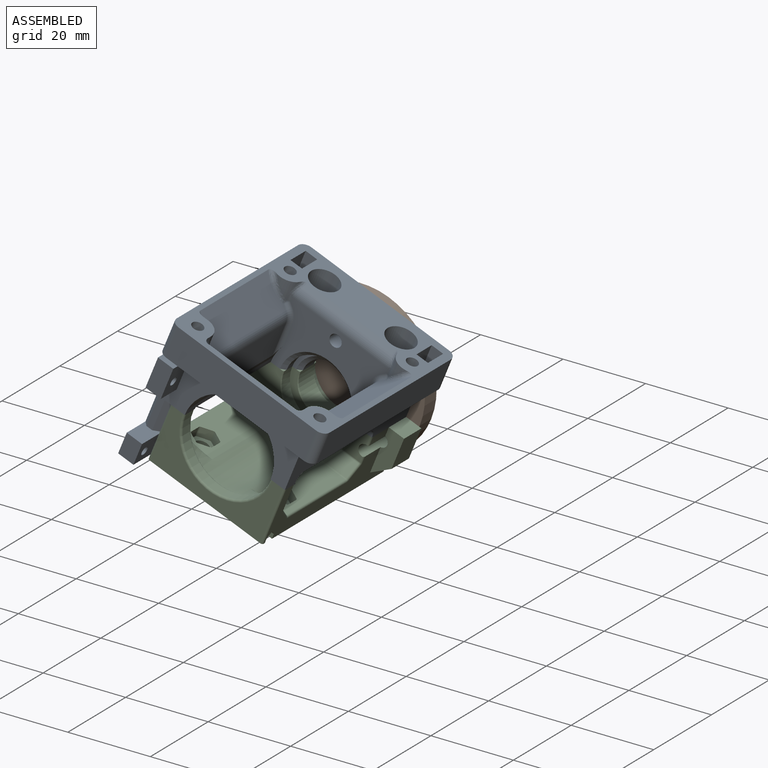
[diagram: assembled view]
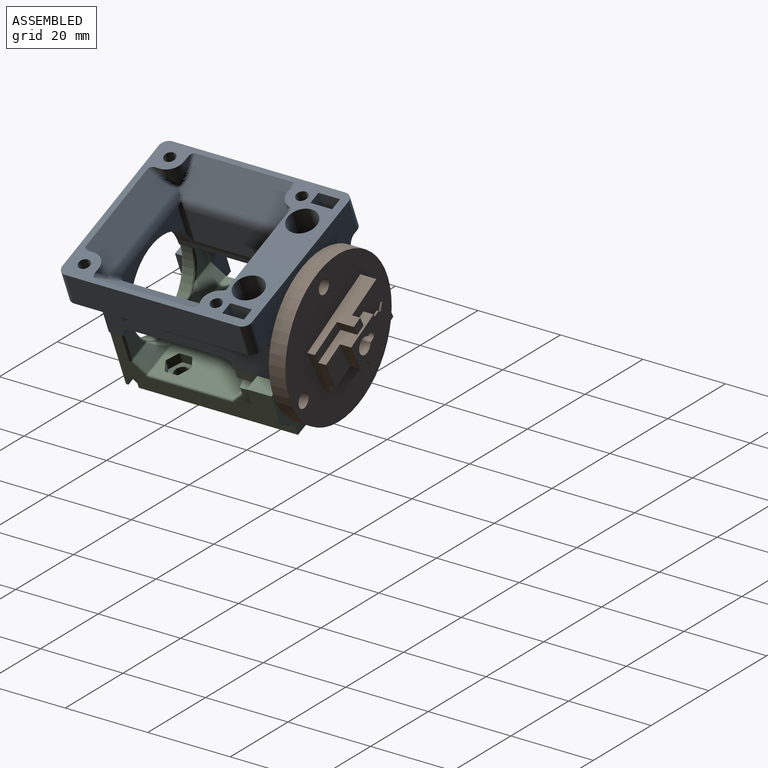
[diagram: assembled view, second angle]
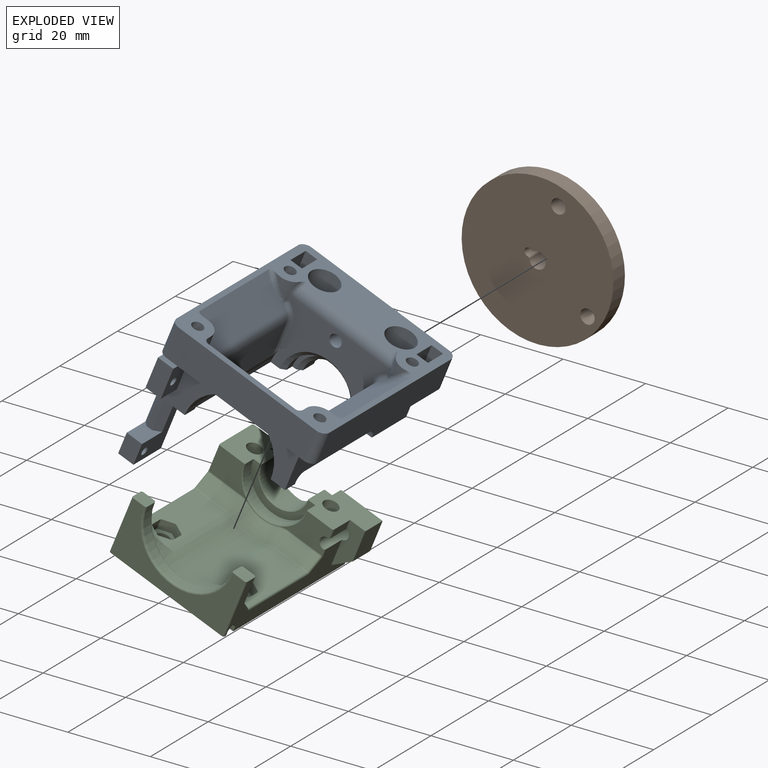
[diagram: exploded view]
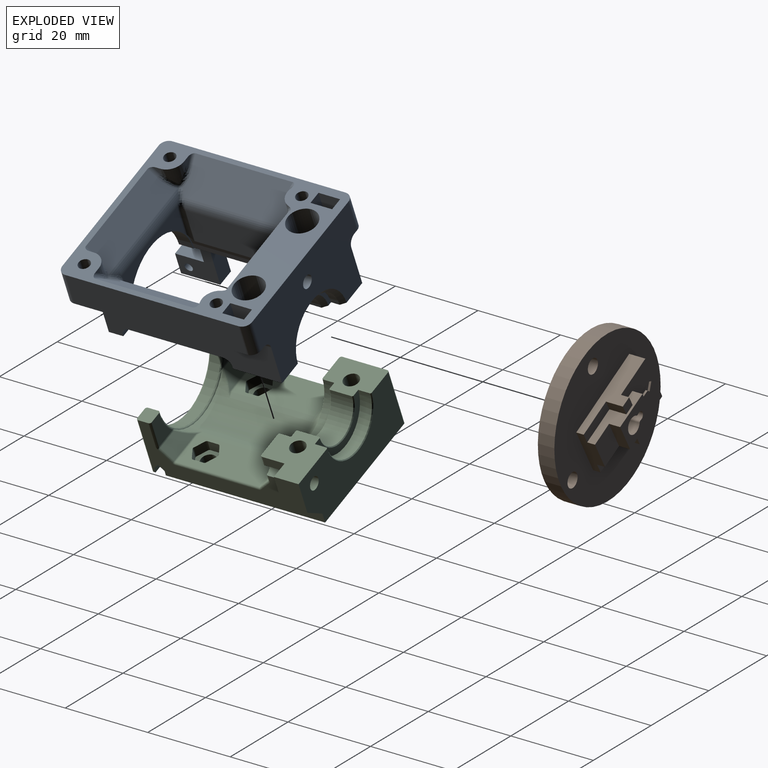
[diagram: exploded view, second angle]
ASSEMBLY  parts=3 mates=2
PART A: 135 faces, bbox 40.8x48.3x35.2 mm
  f0: plane 45.74x3.02mm, normal (0,0,-1), area 115.7mm2, adj f16,f17,f18,f19,f95,f96,f97,f98
  f1: cylinder r=2mm len=31.97mm, axis (1,0,0), area 88.2mm2, adj f4,f12,f88,f89,f90,f125
  f2: plane 13.5x9.5mm, normal (1,0,0), area 69.1mm2, adj f3,f5,f122,f123,f128,f130,f131
  f3: plane 5.5x4mm, normal (0,-1,0), area 22mm2, adj f2,f123,f124,f128
  f4: plane 18x12.83mm, normal (0,-1,0), area 78.8mm2, adj f1,f5,f88,f125,f127,f128,f131,f132
  f5: plane 42x10.39mm, normal (0,0,-1), area 188.3mm2, adj f2,f4,f8,f19,f21,f24,f29,f88
  f6: plane 11.9x8.89mm, normal (0,0,-1), area 81.4mm2, adj f19,f20,f21,f101,f102,f103,f104,f105
  f7: plane 3.74x3.5mm, normal (0,0,-1), area 13.1mm2, adj f20,f29,f88,f89
  f8: cylinder r=1.8mm len=7mm, axis (0,0,1), area 79.2mm2, adj f5,f9
  f9: cone r=2.65mm half-angle=45deg, axis (0,0,1), area 40mm2, adj f8,f10
  f10: cylinder r=3.5mm len=11.3mm, axis (0,0,1), area 248.5mm2, adj f9,f11
  f11: plane 46.76x40.76mm, normal (0,0,1), area 517.4mm2, adj f10,f13,f14,f15,f16,f17,f18,f19
  f12: plane 46x34.99mm, normal (0,0,-1), area 195.6mm2, adj f1,f13,f14,f15,f19,f90,f92,f93
  f13: plane 42x8mm, normal (1,0,0), area 336mm2, adj f11,f12,f14,f110
  f14: cylinder r=2mm len=8mm, axis (0,0,-1), area 25.1mm2, adj f11,f12,f13,f15
  f15: plane 36x8mm, normal (0,-1,0), area 288mm2, adj f11,f12,f14,f16,f133
  f16: cylinder r=2mm len=8mm, axis (0,0,-1), area 25.1mm2, adj f0,f11,f15,f17,f133
  f17: plane 42x8mm, normal (-1,0,0), area 336mm2, adj f0,f11,f16,f18
  f18: cylinder r=2mm len=8mm, axis (0,0,-1), area 25.1mm2, adj f0,f11,f17,f19
  f19: plane 36x20mm, normal (0,1,0), area 512.2mm2, adj f0,f5,f6,f11,f12,f18,f20,f90
  f20: plane 42x10mm, normal (1,0,0), area 355.2mm2, adj f6,f7,f19,f21,f22,f29,f30,f33
  f21: plane 27.54x16.55mm, normal (0,-1,0), area 225mm2, adj f5,f6,f20,f22,f24,f25,f36,f37
  f22: cylinder r=2mm len=3.55mm, axis (-1,0,0), area 8mm2, adj f20,f21,f23,f25,f33,f34
  f23: bspline ~4.09x2.96mm, area 3.9mm2, adj f22,f25,f34,f36
  f24: cylinder r=11.5mm len=26.6mm, axis (0,1,0), area 66.9mm2, adj f5,f21,f27,f28,f29,f85
  f25: cylinder r=11.5mm len=4.71mm, axis (0,1,0), area 1mm2, adj f21,f22,f23,f36
  f26: cylinder r=11.5mm len=4.71mm, axis (0,1,0), area 1mm2, adj f29,f30,f79,f80
  f27: plane 24.6x8.67mm, normal (1,0,0), area 213.2mm2, adj f24,f28,f69,f85
  f28: cylinder r=1mm len=8.67mm, axis (0,0,-1), area 11.4mm2, adj f24,f27,f29,f70
  f29: plane 26.49x12.55mm, normal (0,1,0), area 69.3mm2, adj f5,f7,f20,f24,f26,f28,f30,f70
  f30: cylinder r=2mm len=3.55mm, axis (-1,0,0), area 8mm2, adj f20,f26,f29,f31,f33,f80
  f31: torus R=4mm, axis (-1,0,0), area 2.2mm2, adj f30,f32,f35,f80
  f32: cylinder r=2mm len=22.6mm, axis (0,1,0), area 71mm2, adj f31,f33,f34,f35
  f33: plane 22.6x1.74mm, normal (0,0,-1), area 39.2mm2, adj f20,f22,f30,f32
  f34: torus R=4mm, axis (-1,0,0), area 2.2mm2, adj f22,f23,f32,f35
  f35: plane 24.6x6.68mm, normal (-1,0,0), area 161.2mm2, adj f31,f32,f34,f36,f77,f79
  f36: cylinder r=1mm len=7.78mm, axis (0,0,-1), area 11mm2, adj f21,f23,f25,f35,f37
  f37: torus R=4.5mm, axis (0,1,0), area 4.8mm2, adj f21,f36,f38,f77
  f38: cylinder r=1mm len=1.7mm, axis (-0.71,0,-0.71), area 2.2mm2, adj f21,f37,f39,f44
  f39: sphere r=1mm, area 0.5mm2, adj f38,f40,f43
  f40: cylinder r=1mm len=1.33mm, axis (0,0,-1), area 1.2mm2, adj f21,f39,f41,f42
  f41: bspline ~3.35x2.04mm, area 3.4mm2, adj f40,f42,f62,f63
  f42: cylinder r=3.5mm len=4.78mm, axis (0,0,1), area 11.4mm2, adj f11,f40,f41,f43,f62
  f43: bspline ~6.78x6.37mm, area 10mm2, adj f11,f39,f42,f44
  f44: plane 26x6.67mm, normal (-0.71,0,0.71), area 218.7mm2, adj f11,f38,f43,f45,f48,f77,f81
  f45: bspline ~4.08x3.54mm, area 5.6mm2, adj f44,f46,f48,f82
  f46: cylinder r=3.5mm len=4.39mm, axis (0,0,1), area 15.6mm2, adj f11,f45,f47,f49,f83,f84
  f47: plane 1.34x1.34mm, normal (0,1,0), area 0.9mm2, adj f11,f46,f48
  f48: cylinder r=1mm len=2.75mm, axis (-0.71,0,-0.71), area 3.8mm2, adj f11,f44,f45,f47
  f49: plane 1.09x1.09mm, normal (-1,0,0), area 0.6mm2, adj f11,f46,f50
  f50: cylinder r=1mm len=2.5mm, axis (0,0.71,-0.71), area 3.2mm2, adj f11,f49,f51,f84
  f51: plane 25.9x5.24mm, normal (0,0.71,0.71), area 165.5mm2, adj f11,f50,f52,f72,f84,f87
  f52: bspline ~4.2x3.68mm, area 5.8mm2, adj f51,f53,f75,f87
  f53: cylinder r=3.5mm len=4.39mm, axis (0,0,1), area 15.7mm2, adj f11,f52,f54,f57,f75,f86
  f54: bspline ~4.08x3.54mm, area 5.6mm2, adj f53,f55,f56,f74
  f55: plane 26.57x7.25mm, normal (0.71,0,0.71), area 218.7mm2, adj f11,f54,f56,f58,f67,f69,f73
  f56: cylinder r=1mm len=2.75mm, axis (0.71,0,-0.71), area 3.8mm2, adj f11,f54,f55,f57
  f57: plane 1.34x1.34mm, normal (0,1,0), area 0.9mm2, adj f11,f53,f56
  f58: bspline ~6.78x6.37mm, area 10.2mm2, adj f11,f55,f59,f66
  f59: cylinder r=3.5mm len=4.78mm, axis (0,0,1), area 12mm2, adj f11,f58,f60,f64,f65
  f60: bspline ~1.87x1.55mm, area 1.3mm2, adj f11,f59,f61,f64
  f61: plane 23.73x1.13mm, normal (0,-0.71,0.71), area 32.1mm2, adj f11,f60,f62,f63
  f62: bspline ~1.87x1.55mm, area 1.5mm2, adj f11,f41,f42,f61
  f63: cylinder r=3.5mm len=25.12mm, axis (-1,0,0), area 66.9mm2, adj f21,f41,f61,f64
  f64: bspline ~3.38x2.04mm, area 3.4mm2, adj f59,f60,f63,f65
  f65: cylinder r=1mm len=1.33mm, axis (0,0,1), area 1.2mm2, adj f21,f59,f64,f66
  f66: sphere r=1mm, area 0.4mm2, adj f58,f65,f67
  f67: cylinder r=1mm len=1.7mm, axis (0.71,0,-0.71), area 2.2mm2, adj f21,f55,f66,f68
  f68: torus R=4.5mm, axis (0,-1,0), area 4.8mm2, adj f21,f67,f69,f85
  f69: cylinder r=3.5mm len=24.93mm, axis (0,-1,0), area 67.9mm2, adj f27,f55,f68,f70,f71
  f70: torus R=4.5mm, axis (0,-1,0), area 2.1mm2, adj f28,f29,f69,f71
  f71: bspline ~2.01x1.94mm, area 2.3mm2, adj f69,f70,f72,f73
  f72: cylinder r=3.5mm len=25.89mm, axis (1,0,0), area 64.1mm2, adj f29,f51,f71,f73,f75,f76,f81,f83
  f73: bspline ~2.33x1.79mm, area 2.4mm2, adj f55,f71,f72,f74
  f74: sphere r=1mm, area 0.5mm2, adj f54,f73,f75
  f75: bspline ~1.02x0.99mm, area 0.3mm2, adj f52,f53,f72,f74
  f76: bspline ~2.01x1.94mm, area 2.3mm2, adj f72,f77,f78,f81
  f77: cylinder r=3.5mm len=24.93mm, axis (0,1,0), area 67.9mm2, adj f35,f37,f44,f76,f78
  f78: torus R=4.5mm, axis (0,1,0), area 2.1mm2, adj f29,f76,f77,f79
  f79: cylinder r=1mm len=7.78mm, axis (0,0,-1), area 11mm2, adj f26,f29,f35,f78,f80
  f80: bspline ~3.6x3.4mm, area 3.9mm2, adj f26,f30,f31,f79
  f81: bspline ~2.33x1.79mm, area 2.4mm2, adj f44,f72,f76,f82
  f82: sphere r=1mm, area 0.5mm2, adj f45,f81,f83
  f83: bspline ~1.02x0.99mm, area 0.3mm2, adj f46,f72,f82,f84
  f84: bspline ~4.21x3.69mm, area 5.8mm2, adj f46,f50,f51,f83
  f85: cylinder r=1mm len=8.67mm, axis (0,0,-1), area 11.4mm2, adj f21,f24,f27,f68
  f86: plane 1.09x1.09mm, normal (1,0,0), area 0.6mm2, adj f11,f53,f87
  f87: cylinder r=1mm len=2.5mm, axis (0,0.71,-0.71), area 3.2mm2, adj f11,f51,f52,f86
  f88: cylinder r=11.25mm len=22.5mm, axis (0,1,0), area 123.7mm2, adj f1,f4,f5,f7,f29,f89
  f89: plane 10x9.83mm, normal (0,-1,0), area 54.8mm2, adj f1,f7,f20,f88
  f90: cylinder r=2mm len=44mm, axis (0,1,0), area 119.9mm2, adj f1,f12,f19,f20,f91,f92,f94
  f91: plane 9.76x5.25mm, normal (1,0,0), area 51.2mm2, adj f11,f90,f92,f94
  f92: plane 9.76x3mm, normal (0,-1,0), area 24.8mm2, adj f11,f12,f90,f91,f93
  f93: plane 8x5.25mm, normal (-1,0,0), area 42mm2, adj f11,f12,f92,f94
  f94: plane 9.76x3mm, normal (0,1,0), area 24.8mm2, adj f11,f12,f90,f91,f93
  f95: cylinder r=2mm len=38mm, axis (0,-1,0), area 104.2mm2, adj f0,f19,f96,f98,f99,f100,f122
  f96: plane 9.76x3mm, normal (0,-1,0), area 24.8mm2, adj f0,f11,f95,f97,f99
  f97: plane 8x5.25mm, normal (1,0,0), area 42mm2, adj f0,f11,f96,f98
  f98: plane 9.76x3mm, normal (0,1,0), area 24.8mm2, adj f0,f11,f95,f97,f99
  f99: plane 9.76x5.25mm, normal (-1,0,0), area 51.2mm2, adj f11,f95,f96,f98
  f100: plane 38x10mm, normal (-1,0,0), area 380mm2, adj f5,f19,f95,f122
  f101: cone r=8.6mm half-angle=45deg, axis (0,-1,0), area 38.2mm2, adj f5,f6,f21,f102
  f102: cylinder r=8.1mm len=16.2mm, axis (0,1,0), area 50.9mm2, adj f5,f6,f101,f103
  f103: plane 16.2x8.1mm, normal (0,-1,0), area 23.9mm2, adj f5,f6,f102,f104
  f104: cone r=6.6mm half-angle=45deg, axis (0,-1,0), area 29.3mm2, adj f5,f6,f103,f105
  f105: cylinder r=6.1mm len=12.2mm, axis (0,1,0), area 72.8mm2, adj f5,f6,f104,f106
  f106: cone r=6.6mm half-angle=45deg, axis (0,1,0), area 29.3mm2, adj f5,f6,f105,f107
  f107: plane 16.2x8.1mm, normal (0,1,0), area 23.9mm2, adj f5,f6,f106,f108
  f108: cylinder r=8.1mm len=16.2mm, axis (0,1,0), area 53.4mm2, adj f5,f6,f107,f109
  f109: cone r=8.6mm half-angle=45deg, axis (0,1,0), area 38.2mm2, adj f5,f6,f19,f108
  f110: cylinder r=2mm len=8mm, axis (0,0,-1), area 25.1mm2, adj f11,f12,f13,f19
  f111: cylinder r=3.5mm len=11.3mm, axis (0,0,1), area 248.5mm2, adj f11,f112
  f112: cone r=2.65mm half-angle=45deg, axis (0,0,1), area 40mm2, adj f111,f113
  f113: cylinder r=1.8mm len=7mm, axis (0,0,1), area 79.2mm2, adj f6,f112
  f114: cylinder r=1.38mm len=4.63mm, axis (0,0,1), area 40mm2, adj f11,f115
  f115: cone r=0.73mm half-angle=45deg, axis (0,0,1), area 8.4mm2, adj f114
  f116: cylinder r=1.38mm len=4.63mm, axis (0,0,1), area 40mm2, adj f11,f117
  f117: cone r=0.73mm half-angle=45deg, axis (0,0,1), area 8.4mm2, adj f116
  f118: cylinder r=1.38mm len=6mm, axis (0,0,1), area 51.8mm2, adj f11,f119
  f119: plane 2.75x2.75mm, normal (0,0,1), area 5.9mm2, adj f118
  f120: plane 2.75x2.75mm, normal (0,0,1), area 5.9mm2, adj f121
  f121: cylinder r=1.38mm len=6mm, axis (0,0,1), area 51.8mm2, adj f11,f120
  f122: plane 25.5x4mm, normal (0,1,0), area 101.1mm2, adj f0,f2,f95,f100,f123,f124
  f123: plane 9.5x4mm, normal (0,0,-1), area 38mm2, adj f2,f3,f122,f124
  f124: plane 25.5x9.5mm, normal (-1,0,0), area 158mm2, adj f0,f3,f122,f123,f126,f127,f128,f129
  f125: plane 8x5.5mm, normal (1,0,0), area 40mm2, adj f1,f4,f12,f126,f127,f129,f133
  f126: plane 8x4mm, normal (0,-1,0), area 32mm2, adj f124,f125,f127,f133
  f127: plane 6.5x4mm, normal (0,0,-1), area 22.5mm2, adj f4,f124,f125,f126,f132
  f128: plane 7x4mm, normal (0,0,1), area 23.6mm2, adj f2,f3,f4,f124,f131,f132
  f129: cylinder r=1mm len=4mm, axis (-1,0,0), area 25.1mm2, adj f124,f125
  f130: cylinder r=1mm len=4mm, axis (-1,0,0), area 25.1mm2, adj f2,f124
  f131: plane 8x1.5mm, normal (0.71,-0.71,0), area 17mm2, adj f2,f4,f5,f128
  f132: plane 12x1mm, normal (-0.71,-0.71,0), area 17mm2, adj f4,f124,f127,f128
  f133: plane 4x1.76mm, normal (0,0,1), area 6.1mm2, adj f15,f16,f124,f125,f126
  f134: cylinder r=1.5mm len=11.9mm, axis (0,1,0), area 112.2mm2, adj f19,f21
PART B: 35 faces, bbox 36.8x36.8x10.4 mm
  f0: plane 10.39x9.13mm, normal (0,0,1), area 47.5mm2, adj f1,f7,f8,f9,f22,f23,f24,f28
  f1: cylinder r=2mm len=10.4mm, axis (0,0,-1), area 105.2mm2, adj f0,f2,f7,f8
  f2: plane 36.79x36.79mm, normal (0,0,-1), area 1028.6mm2, adj f1,f7,f8,f9,f10,f12,f13
  f3: plane 20.28x5.9mm, normal (0.97,-0.26,0), area 68.6mm2, adj f4,f6,f11,f21,f25,f29,f30,f34
  f4: plane 11.59x3.7mm, normal (-0.26,-0.97,0), area 35.1mm2, adj f3,f5,f11,f23,f24,f27,f30,f32
  f5: plane 20.28x5.9mm, normal (-0.97,0.26,0), area 68.6mm2, adj f4,f6,f11,f21,f26,f31,f32,f33
  f6: plane 11.59x3.92mm, normal (0.26,0.97,0), area 47.1mm2, adj f3,f5,f11,f21
  f7: cylinder r=0.5mm len=10.4mm, axis (0,0,1), area 6.5mm2, adj f0,f1,f2,f9
  f8: cylinder r=0.5mm len=10.4mm, axis (0,0,-1), area 6.5mm2, adj f0,f1,f2,f9
  f9: cylinder r=1mm len=10.4mm, axis (0,0,-1), area 38.6mm2, adj f0,f2,f7,f8
  f10: cylinder r=1.75mm len=4mm, axis (0,0,1), area 44mm2, adj f2,f11
  f11: plane 36.79x36.79mm, normal (0,0,1), area 791.8mm2, adj f3,f4,f5,f6,f10,f12,f13
  f12: cylinder r=1.75mm len=4mm, axis (0,0,1), area 44mm2, adj f2,f11
  f13: cylinder r=18.39mm len=36.79mm, axis (0,0,-1), area 462.3mm2, adj f2,f11
  f14: plane 5.57x3.23mm, normal (0,0,1), area 8.6mm2, adj f15,f16,f17,f18,f19,f20,f22
  f15: plane 3.54x0.95mm, normal (0.97,-0.26,0), area 1.8mm2, adj f14,f20,f21,f22
  f16: plane 3.54x0.95mm, normal (-0.97,0.26,0), area 1.8mm2, adj f14,f17,f21,f22
  f17: plane 0.83x0.5mm, normal (-0.22,0.98,0), area 0.4mm2, adj f14,f16,f18,f21
  f18: plane 1.84x1.06mm, normal (-0.87,-0.5,0), area 1.1mm2, adj f14,f17,f19,f21
  f19: plane 1.84x1.06mm, normal (0.5,-0.87,0), area 1.1mm2, adj f14,f18,f20,f21
  f20: plane 0.62x0.58mm, normal (0.68,0.73,0), area 0.4mm2, adj f14,f15,f19,f21
  f21: plane 14.1x12.45mm, normal (0,0,1), area 85.5mm2, adj f3,f5,f6,f15,f16,f17,f18,f19
  f22: plane 6.84x2.98mm, normal (0.26,0.97,0), area 18.3mm2, adj f0,f14,f15,f16,f21,f23,f24
  f23: plane 13.94x4.6mm, normal (0.97,-0.26,0), area 34.5mm2, adj f0,f4,f21,f22,f25,f27,f28,f29
  f24: plane 13.94x4.6mm, normal (-0.97,0.26,0), area 34.5mm2, adj f0,f4,f21,f22,f26,f27,f28,f31
  f25: plane 3.05x3.02mm, normal (0,0,1), area 6.1mm2, adj f3,f23,f29,f34
  f26: plane 3.05x3.02mm, normal (0,0,1), area 6.1mm2, adj f5,f24,f31,f33
  f27: plane 8.28x7.21mm, normal (0,0,1), area 39.4mm2, adj f4,f23,f24,f28
  f28: plane 6.84x2.7mm, normal (-0.26,-0.97,0), area 19.1mm2, adj f0,f23,f24,f27
  f29: plane 4.1x2.38mm, normal (-0.26,-0.97,0), area 10.1mm2, adj f3,f23,f25,f30
  f30: plane 9.16x4.66mm, normal (0,0,1), area 21.7mm2, adj f3,f4,f23,f29
  f31: plane 4.1x2.38mm, normal (-0.26,-0.97,0), area 10.1mm2, adj f5,f24,f26,f32
  f32: plane 9.16x4.66mm, normal (0,0,1), area 21.7mm2, adj f4,f5,f24,f31
  f33: plane 2.38x1.98mm, normal (0.26,0.97,0), area 4.9mm2, adj f5,f21,f24,f26
  f34: plane 2.38x1.98mm, normal (0.26,0.97,0), area 4.9mm2, adj f3,f21,f23,f25
PART C: 225 faces, bbox 34.1x42.1x14.6 mm
  f0: plane 41.5x14.5mm, normal (1,0,0), area 217.7mm2, adj f1,f3,f14,f15,f16,f17,f18,f51
  f1: cylinder r=0.5mm len=1.52mm, axis (0,0,-1), area 1.2mm2, adj f0,f65,f79,f223
  f2: plane 5.4x2.35mm, normal (1,0,0), area 12.7mm2, adj f6,f141,f221,f223
  f3: plane 3.74x3.5mm, normal (0,0,1), area 12.9mm2, adj f0,f7,f11,f144,f145,f146,f147,f220
  f4: plane 3.74x3.5mm, normal (0,0,1), area 12.9mm2, adj f7,f12,f50,f110,f143,f144,f145,f146
  f5: plane 11.9x8.89mm, normal (0,0,1), area 83.2mm2, adj f50,f53,f54,f55,f56,f57,f58,f59
  f6: plane 12.89x11.9mm, normal (0,0,1), area 107.2mm2, adj f2,f54,f55,f56,f57,f58,f59,f60
  f7: torus R=11.75mm, axis (0,-1,0), area 22.6mm2, adj f3,f4,f8,f9,f10,f11,f12,f102
  f8: cylinder r=11.5mm len=23.46mm, axis (0,-1,0), area 262mm2, adj f7,f9,f87,f88,f91,f92,f94,f96
  f9: bspline ~3.49x3.25mm, area 2.5mm2, adj f7,f8,f10,f85,f87
  f10: bspline ~0.95x0.62mm, area 0.1mm2, adj f7,f9,f11,f13
  f11: plane 6.97x5.03mm, normal (0,1,0), area 23.3mm2, adj f3,f7,f10,f13,f220
  f12: plane 6.97x5.03mm, normal (0,1,0), area 23.3mm2, adj f4,f7,f103,f104,f110
  f13: cylinder r=0.5mm len=5.12mm, axis (1,0,0), area 1.9mm2, adj f10,f11,f14,f85
  f14: torus R=1mm, axis (1,0,0), area 0.4mm2, adj f0,f13,f84,f220
  f15: plane 29.97x1.25mm, normal (0,-0.71,-0.71), area 53mm2, adj f0,f16,f50,f52
  f16: plane 29.97x1.25mm, normal (0,-1,0), area 37.5mm2, adj f0,f15,f17,f50
  f17: plane 38.6x29.97mm, normal (0,0,-1), area 1084mm2, adj f0,f16,f19,f22,f50,f53,f54,f182
  f18: plane 29.97x0.9mm, normal (0,0,-1), area 26.9mm2, adj f0,f50,f51,f143,f144,f147
  f19: cylinder r=1.8mm len=3.6mm, axis (0,0,1), area 22.6mm2, adj f17,f20
  f20: plane 6.2x5.5mm, normal (0,0,1), area 15.9mm2, adj f19,f23,f24,f25,f26,f27,f28,f29
  f21: plane 6.2x5.5mm, normal (0,0,1), area 15.9mm2, adj f22,f37,f38,f39,f40,f41,f42,f43
  f22: cylinder r=1.8mm len=3.6mm, axis (0,0,1), area 22.6mm2, adj f17,f21
  f23: cylinder r=0.5mm len=2.5mm, axis (0,0,-1), area 1.3mm2, adj f20,f24,f34,f35
  f24: plane 2.5x2.25mm, normal (-0.5,-0.87,0), area 6.5mm2, adj f20,f23,f25,f35
  f25: cylinder r=0.5mm len=2.5mm, axis (0,0,-1), area 1.3mm2, adj f20,f24,f26,f35
  f26: plane 2.5x2.25mm, normal (0.5,-0.87,0), area 6.5mm2, adj f20,f25,f27,f35
  f27: cylinder r=0.5mm len=2.5mm, axis (0,0,-1), area 1.3mm2, adj f20,f26,f28,f35
  f28: plane 2.6x2.5mm, normal (1,0,0), area 6.5mm2, adj f20,f27,f29,f35
  f29: cylinder r=0.5mm len=2.5mm, axis (0,0,-1), area 1.3mm2, adj f20,f28,f30,f35
  f30: plane 2.5x2.25mm, normal (0.5,0.87,0), area 6.5mm2, adj f20,f29,f31,f35
  f31: cylinder r=0.5mm len=2.5mm, axis (0,0,-1), area 1.3mm2, adj f20,f30,f32,f35
  f32: plane 2.5x2.25mm, normal (-0.5,0.87,0), area 6.5mm2, adj f20,f31,f33,f35
  f33: cylinder r=0.5mm len=2.5mm, axis (0,0,-1), area 1.3mm2, adj f20,f32,f34,f35
  f34: plane 2.6x2.5mm, normal (-1,0,0), area 6.5mm2, adj f20,f23,f33,f35
  f35: plane 20.19x8mm, normal (0,0,1), area 135.5mm2, adj f23,f24,f25,f26,f27,f28,f29,f30
  f36: plane 20.19x8mm, normal (0,0,1), area 135.5mm2, adj f37,f38,f39,f40,f41,f42,f43,f44
  f37: plane 2.6x2.5mm, normal (-1,0,0), area 6.5mm2, adj f21,f36,f38,f48
  f38: cylinder r=0.5mm len=2.5mm, axis (0,0,-1), area 1.3mm2, adj f21,f36,f37,f39
  f39: plane 2.5x2.25mm, normal (-0.5,-0.87,0), area 6.5mm2, adj f21,f36,f38,f40
  f40: cylinder r=0.5mm len=2.5mm, axis (0,0,-1), area 1.3mm2, adj f21,f36,f39,f41
  f41: plane 2.5x2.25mm, normal (0.5,-0.87,0), area 6.5mm2, adj f21,f36,f40,f42
  f42: cylinder r=0.5mm len=2.5mm, axis (0,0,-1), area 1.3mm2, adj f21,f36,f41,f43
  f43: plane 2.6x2.5mm, normal (1,0,0), area 6.5mm2, adj f21,f36,f42,f44
  f44: cylinder r=0.5mm len=2.5mm, axis (0,0,-1), area 1.3mm2, adj f21,f36,f43,f45
  f45: plane 2.5x2.25mm, normal (0.5,0.87,0), area 6.5mm2, adj f21,f36,f44,f46
  f46: cylinder r=0.5mm len=2.5mm, axis (0,0,-1), area 1.3mm2, adj f21,f36,f45,f47
  f47: plane 2.5x2.25mm, normal (-0.5,0.87,0), area 6.5mm2, adj f21,f36,f46,f48
  f48: cylinder r=0.5mm len=2.5mm, axis (0,0,-1), area 1.3mm2, adj f21,f36,f37,f47
  f49: cylinder r=0.5mm len=20.19mm, axis (0,1,0), area 15.9mm2, adj f35,f50,f107,f116
  f50: plane 41x14.5mm, normal (-1,0,0), area 297.9mm2, adj f4,f5,f15,f16,f17,f18,f49,f51
  f51: plane 29.97x1.25mm, normal (0,1,0), area 37.5mm2, adj f0,f18,f50,f52
  f52: plane 29.97x1.25mm, normal (0,0.71,-0.71), area 53mm2, adj f0,f15,f50,f51
  f53: cylinder r=0.5mm len=14.5mm, axis (0,0,-1), area 11.4mm2, adj f5,f17,f50,f54
  f54: plane 33.47x14.5mm, normal (0,1,0), area 352mm2, adj f0,f5,f6,f17,f53,f55,f222,f223
  f55: cone r=8.2mm half-angle=45deg, axis (0,1,0), area 7.3mm2, adj f5,f6,f54,f56
  f56: cylinder r=8.1mm len=16.2mm, axis (0,-1,0), area 73.8mm2, adj f5,f6,f55,f57
  f57: plane 16.2x8.1mm, normal (0,1,0), area 40.7mm2, adj f5,f6,f56,f58
  f58: cone r=6.2mm half-angle=45deg, axis (0,1,0), area 5.5mm2, adj f5,f6,f57,f59
  f59: cylinder r=6.1mm len=12.2mm, axis (0,-1,0), area 103.5mm2, adj f5,f6,f58,f60
  f60: cone r=6.2mm half-angle=45deg, axis (0,-1,0), area 5.5mm2, adj f5,f6,f59,f61
  f61: plane 16.2x8.1mm, normal (0,-1,0), area 40.7mm2, adj f5,f6,f60,f62
  f62: cylinder r=8.1mm len=16.2mm, axis (0,-1,0), area 71.3mm2, adj f5,f6,f61,f63,f72,f73,f74,f142
  f63: cone r=8.2mm half-angle=45deg, axis (0,-1,0), area 2.4mm2, adj f6,f62,f65,f74
  f64: plane 10.43x7.27mm, normal (0,-1,0), area 49.4mm2, adj f5,f66,f68,f69,f70,f71,f142
  f65: plane 10.43x7.27mm, normal (0,-1,0), area 46.3mm2, adj f1,f6,f63,f75,f76,f77,f78,f141
  f66: cylinder r=0.5mm len=6.79mm, axis (0,0,1), area 5.3mm2, adj f5,f50,f64,f67
  f67: torus R=1mm, axis (-1,0,0), area 0.4mm2, adj f50,f66,f68,f117
  f68: cylinder r=0.5mm len=8.72mm, axis (-1,0,0), area 3.4mm2, adj f64,f67,f69,f118
  f69: bspline ~0.48x0.33mm, area 0.1mm2, adj f64,f68,f70,f119
  f70: bspline ~1.57x0.82mm, area 0.6mm2, adj f64,f69,f71,f120
  f71: bspline ~0.5x0.38mm, area 0.1mm2, adj f64,f70,f72,f125,f127
  f72: bspline ~0.33x0.29mm, area 0mm2, adj f62,f71,f73,f142
  f73: cone r=8.2mm half-angle=44.7deg, axis (0,-1,0), area 2.3mm2, adj f62,f72,f74,f127
  f74: bspline ~0.33x0.29mm, area 0mm2, adj f62,f63,f73,f75
  f75: bspline ~0.5x0.38mm, area 0.1mm2, adj f65,f74,f76,f127,f128
  f76: bspline ~1.57x0.82mm, area 0.6mm2, adj f65,f75,f77,f131
  f77: bspline ~0.48x0.33mm, area 0.1mm2, adj f65,f76,f78,f136
  f78: cylinder r=0.5mm len=8.72mm, axis (-1,0,0), area 3.4mm2, adj f65,f77,f79,f137
  f79: torus R=1mm, axis (-1,0,0), area 0.4mm2, adj f0,f1,f78,f80
  f80: cylinder r=0.5mm len=3.06mm, axis (0,-0.71,-0.71), area 3mm2, adj f0,f79,f81,f137
  f81: torus R=1mm, axis (1,0,0), area 0.4mm2, adj f0,f80,f82,f138
  f82: cylinder r=0.5mm len=20.19mm, axis (0,-1,0), area 15.9mm2, adj f0,f36,f81,f83
  f83: torus R=1mm, axis (-1,0,0), area 0.4mm2, adj f0,f82,f84,f140
  f84: cylinder r=0.5mm len=3.06mm, axis (0,-0.71,0.71), area 3mm2, adj f0,f14,f83,f85
  f85: plane 8.22x2.74mm, normal (0,0.71,0.71), area 24.8mm2, adj f9,f13,f84,f86,f140
  f86: bspline ~0.51x0.38mm, area 0.1mm2, adj f85,f87,f89,f133,f140
  f87: bspline ~0.45x0.35mm, area 0mm2, adj f8,f9,f86,f88
  f88: bspline ~1.56x1.2mm, area 0.4mm2, adj f8,f87,f89,f92
  f89: cylinder r=0.5mm len=1.33mm, axis (-0.95,0.22,-0.22), area 0.3mm2, adj f86,f88,f90
  f90: plane 20.22x1.28mm, normal (-0.23,0,0.97), area 25mm2, adj f89,f91,f133,f139
  f91: cylinder r=0.5mm len=19.88mm, axis (0,1,0), area 2.2mm2, adj f8,f90,f92,f93,f129,f130
  f92: bspline ~0.11x0.08mm, area 0mm2, adj f8,f88,f91
  f93: bspline ~0.46x0.21mm, area 0mm2, adj f91,f94,f126,f129
  f94: torus R=11mm, axis (0,-1,0), area 4.1mm2, adj f8,f93,f95,f126
  f95: bspline ~0.46x0.21mm, area 0mm2, adj f94,f96,f124,f126
  f96: cylinder r=0.5mm len=19.88mm, axis (0,-1,0), area 2.2mm2, adj f8,f95,f97,f121,f123,f124
  f97: bspline ~0.11x0.08mm, area 0mm2, adj f8,f96,f98
  f98: bspline ~1.56x1.13mm, area 0.4mm2, adj f8,f97,f99,f101
  f99: cylinder r=0.5mm len=1.33mm, axis (-0.95,-0.22,0.22), area 0.3mm2, adj f98,f100,f123
  f100: bspline ~0.51x0.38mm, area 0.1mm2, adj f99,f101,f108,f109,f111
  f101: bspline ~0.45x0.35mm, area 0mm2, adj f8,f98,f100,f102
  f102: bspline ~3.49x3.25mm, area 2.5mm2, adj f7,f8,f101,f103,f109
  f103: bspline ~0.95x0.62mm, area 0.1mm2, adj f7,f12,f102,f104
  f104: cylinder r=0.5mm len=5.12mm, axis (1,0,0), area 1.9mm2, adj f12,f103,f105,f109
  f105: torus R=1mm, axis (1,0,0), area 0.4mm2, adj f50,f104,f106,f110
  f106: cylinder r=0.5mm len=3.06mm, axis (0,0.71,-0.71), area 3mm2, adj f50,f105,f107,f109
  f107: torus R=1mm, axis (-1,0,0), area 0.4mm2, adj f49,f50,f106,f108
  f108: cylinder r=0.5mm len=8mm, axis (-1,0,0), area 3.1mm2, adj f35,f100,f107,f109
  f109: plane 8.21x2.73mm, normal (0,0.71,0.71), area 24.8mm2, adj f100,f102,f104,f106,f108
  f110: cylinder r=0.5mm len=6.79mm, axis (0,0,-1), area 5.3mm2, adj f4,f12,f50,f105
  f111: cylinder r=0.5mm len=20.19mm, axis (0,1,0), area 2.3mm2, adj f35,f100,f112,f113,f114,f123
  f112: bspline ~0.46x0.22mm, area 0mm2, adj f111,f113,f120,f122
  f113: bspline ~0.47x0.24mm, area 0.1mm2, adj f111,f112,f114,f119
  f114: bspline ~0.46x0.22mm, area 0mm2, adj f111,f113,f115,f118
  f115: cylinder r=0.5mm len=8mm, axis (1,0,0), area 3.1mm2, adj f35,f114,f116,f118
  f116: torus R=1mm, axis (1,0,0), area 0.4mm2, adj f49,f50,f115,f117
  f117: cylinder r=0.5mm len=3.06mm, axis (0,0.71,0.71), area 3mm2, adj f50,f67,f116,f118
  f118: plane 8.72x2.71mm, normal (0,-0.71,0.71), area 32.1mm2, adj f68,f114,f115,f117,f119
  f119: bspline ~2.84x2.82mm, area 0.3mm2, adj f69,f113,f118,f120
  f120: bspline ~3.1x2.77mm, area 5.3mm2, adj f70,f112,f119,f121,f122,f125
  f121: bspline ~0.46x0.22mm, area 0mm2, adj f96,f120,f122,f124
  f122: bspline ~1.33x0.51mm, area 0.5mm2, adj f112,f120,f121,f123
  f123: plane 20.22x1.28mm, normal (0.23,0,0.97), area 25mm2, adj f96,f99,f111,f122
  f124: bspline ~0.47x0.25mm, area 0.1mm2, adj f95,f96,f121,f125
  f125: bspline ~2.78x2.76mm, area 0.3mm2, adj f71,f120,f124,f126
  f126: cone r=10mm half-angle=45deg, axis (0,-1,0), area 36.8mm2, adj f93,f94,f95,f125,f127,f128
  f127: torus R=8.29mm, axis (0,-1,0), area 3.3mm2, adj f71,f73,f75,f126
  f128: bspline ~2.77x2.75mm, area 0.3mm2, adj f75,f126,f129,f131
  f129: bspline ~0.47x0.25mm, area 0.1mm2, adj f91,f93,f128,f130
  f130: bspline ~0.46x0.22mm, area 0mm2, adj f91,f129,f131,f139
  f131: bspline ~3.1x2.77mm, area 5.3mm2, adj f76,f128,f130,f132,f136,f139
  f132: bspline ~0.46x0.22mm, area 0mm2, adj f131,f133,f135,f139
  f133: cylinder r=0.5mm len=20.19mm, axis (0,-1,0), area 2.3mm2, adj f36,f86,f90,f132,f134,f135
  f134: bspline ~0.46x0.22mm, area 0mm2, adj f133,f135,f137,f138
  f135: bspline ~0.47x0.24mm, area 0.1mm2, adj f132,f133,f134,f136
  f136: bspline ~2.84x2.82mm, area 0.3mm2, adj f77,f131,f135,f137
  f137: plane 8.72x2.71mm, normal (0,-0.71,0.71), area 32.1mm2, adj f78,f80,f134,f136,f138
  f138: cylinder r=0.5mm len=8mm, axis (1,0,0), area 3.1mm2, adj f36,f81,f134,f137
  f139: bspline ~1.33x0.51mm, area 0.5mm2, adj f90,f130,f131,f132
  f140: cylinder r=0.5mm len=8mm, axis (-1,0,0), area 3.1mm2, adj f36,f83,f85,f86
  f141: cylinder r=0.5mm len=2.35mm, axis (0,0,-1), area 1.8mm2, adj f2,f6,f65,f223
  f142: cone r=8.2mm half-angle=45deg, axis (0,-1,0), area 2.4mm2, adj f5,f62,f64,f72
  f143: cylinder r=0.5mm len=14.5mm, axis (0,0,-1), area 11.4mm2, adj f4,f18,f50,f144
  f144: plane 28.97x14.5mm, normal (0,-1,0), area 203.2mm2, adj f3,f4,f18,f143,f145,f147
  f145: torus R=11.75mm, axis (0,-1,0), area 28.2mm2, adj f3,f4,f144,f146
  f146: cylinder r=11.25mm len=22.5mm, axis (0,-1,0), area 88.4mm2, adj f3,f4,f7,f145
  f147: cylinder r=0.5mm len=14.5mm, axis (0,0,-1), area 11.4mm2, adj f0,f3,f18,f144
  f148: plane 0.77x0.5mm, normal (0,-0.97,-0.26), area 0.4mm2, adj f50,f149,f180,f181
  f149: plane 0.5x0.29mm, normal (0,0.13,-0.99), area 0.1mm2, adj f50,f148,f150,f181
  f150: extruded ~0.77x0.5mm, area 0.4mm2, adj f50,f149,f151,f181
  f151: extruded ~1.06x0.5mm, area 0.5mm2, adj f50,f150,f152,f181
  f152: extruded ~1.34x0.63mm, area 0.7mm2, adj f50,f151,f153,f181
  f153: extruded ~1.71x0.97mm, area 1mm2, adj f50,f152,f154,f181
  f154: extruded ~1.84x1.72mm, area 1.5mm2, adj f50,f153,f155,f181
  f155: plane 0.5x0.34mm, normal (0,0.04,1), area 0.2mm2, adj f50,f154,f156,f181
  f156: plane 0.75x0.5mm, normal (0,-0.95,-0.32), area 0.4mm2, adj f50,f155,f157,f181
  f157: plane 0.5x0.23mm, normal (0,-0.08,-1), area 0.1mm2, adj f50,f156,f158,f181
  f158: extruded ~1.59x0.5mm, area 0.8mm2, adj f50,f157,f159,f181
  f159: extruded ~0.96x0.73mm, area 0.6mm2, adj f50,f158,f160,f181
  f160: extruded ~0.97x0.5mm, area 0.6mm2, adj f50,f159,f161,f181
  f161: extruded ~1.11x0.5mm, area 0.6mm2, adj f50,f160,f162,f181
  f162: extruded ~1.04x0.5mm, area 0.5mm2, adj f50,f161,f163,f181
  f163: plane 0.5x0.37mm, normal (0,0.2,0.98), area 0.2mm2, adj f50,f162,f164,f181
  f164: plane 0.77x0.5mm, normal (0,-0.96,-0.29), area 0.4mm2, adj f50,f163,f165,f181
  f165: plane 0.64x0.5mm, normal (0,-0.17,-0.99), area 0.3mm2, adj f50,f164,f166,f181
  f166: extruded ~0.78x0.5mm, area 0.4mm2, adj f50,f165,f167,f181
  f167: extruded ~1.59x0.5mm, area 0.8mm2, adj f50,f166,f168,f181
  f168: extruded ~1.47x0.61mm, area 0.8mm2, adj f50,f167,f169,f181
  f169: extruded ~0.72x0.5mm, area 0.4mm2, adj f50,f168,f170,f181
  f170: extruded ~0.59x0.58mm, area 0.4mm2, adj f50,f169,f171,f181
  f171: extruded ~0.7x0.5mm, area 0.4mm2, adj f50,f170,f172,f181
  f172: plane 0.5x0.38mm, normal (0,0.29,0.96), area 0.2mm2, adj f50,f171,f173,f181
  f173: plane 0.5x0.32mm, normal (0,0.37,-0.93), area 0.2mm2, adj f50,f172,f174,f181
  f174: extruded ~0.5x0.46mm, area 0.3mm2, adj f50,f173,f175,f181
  f175: extruded ~1.82x0.5mm, area 1mm2, adj f50,f174,f176,f181
  f176: extruded ~1.96x1mm, area 1.1mm2, adj f50,f175,f177,f181
  f177: extruded ~1.95x1.08mm, area 1.1mm2, adj f50,f176,f178,f181
  f178: extruded ~1.41x0.5mm, area 0.7mm2, adj f50,f177,f179,f181
  f179: plane 0.57x0.5mm, normal (0,-0.04,1), area 0.3mm2, adj f50,f178,f180,f181
  f180: plane 0.55x0.5mm, normal (0,-0.1,1), area 0.3mm2, adj f50,f148,f179,f181
  f181: plane 9.31x6.49mm, normal (-1,0,0), area 13mm2, adj f148,f149,f150,f151,f152,f153,f154,f155
  f182: plane 8.82x2.75mm, normal (-0.5,-0.87,0), area 28mm2, adj f17,f183,f185,f193
  f183: plane 2.75x2.27mm, normal (-0.35,-0.61,-0.71), area 3.8mm2, adj f182,f184,f192,f198,f199,f206
  f184: plane 2.75x2.27mm, normal (0.35,-0.61,-0.71), area 3.8mm2, adj f183,f185,f187,f194,f199,f206
  f185: plane 8.82x2.75mm, normal (0.5,-0.87,0), area 28mm2, adj f17,f182,f184,f186
  f186: plane 8.82x3.18mm, normal (1,0,0), area 28mm2, adj f17,f185,f187,f189
  f187: plane 3.18x1.18mm, normal (0.71,0,-0.71), area 3.8mm2, adj f184,f186,f188,f194,f195,f206
  f188: plane 2.75x2.27mm, normal (0.35,0.61,-0.71), area 3.8mm2, adj f187,f189,f191,f195,f196,f206
  f189: plane 8.82x2.75mm, normal (0.5,0.87,0), area 28mm2, adj f17,f186,f188,f190
  f190: plane 8.82x2.75mm, normal (-0.5,0.87,0), area 28mm2, adj f17,f189,f191,f193
  f191: plane 2.75x2.27mm, normal (-0.35,0.61,-0.71), area 3.8mm2, adj f188,f190,f192,f196,f197,f206
  f192: plane 3.18x1.18mm, normal (-0.71,0,-0.71), area 3.8mm2, adj f183,f191,f193,f197,f198,f206
  f193: plane 8.82x3.18mm, normal (-1,0,0), area 28mm2, adj f17,f182,f190,f192
  f194: plane 0.04x0.02mm, normal (0,0,-1), area 0mm2, adj f184,f187,f206
  f195: plane 0.04x0.02mm, normal (0,0,-1), area 0mm2, adj f187,f188,f206
  f196: plane 0.05x0.01mm, normal (0,0,-1), area 0mm2, adj f188,f191,f206
  f197: plane 0.04x0.02mm, normal (0,0,-1), area 0mm2, adj f191,f192,f206
  f198: plane 0.04x0.02mm, normal (0,0,-1), area 0mm2, adj f183,f192,f206
  f199: plane 0.05x0.01mm, normal (0,0,-1), area 0mm2, adj f183,f184,f206
  f200: plane 0.04x0.02mm, normal (0,0,-1), area 0mm2, adj f207,f211,f212
  f201: plane 0.04x0.02mm, normal (0,0,-1), area 0mm2, adj f211,f212,f215
  f202: plane 0.05x0.01mm, normal (0,0,-1), area 0mm2, adj f211,f215,f216
  f203: plane 0.04x0.02mm, normal (0,0,-1), area 0mm2, adj f211,f216,f219
  f204: plane 0.04x0.02mm, normal (0,0,-1), area 0mm2, adj f210,f211,f219
  f205: plane 0.05x0.01mm, normal (0,0,-1), area 0mm2, adj f207,f210,f211
  f206: cylinder r=1.8mm len=4.73mm, axis (0,0,1), area 52.6mm2, adj f6,f183,f184,f187,f188,f191,f192,f194
  f207: plane 2.75x2.27mm, normal (0.35,-0.61,-0.71), area 3.8mm2, adj f200,f205,f208,f210,f211,f212
  f208: plane 8.82x2.75mm, normal (0.5,-0.87,0), area 28mm2, adj f17,f207,f209,f213
  f209: plane 8.82x2.75mm, normal (-0.5,-0.87,0), area 28mm2, adj f17,f208,f210,f218
  f210: plane 2.75x2.27mm, normal (-0.35,-0.61,-0.71), area 3.8mm2, adj f204,f205,f207,f209,f211,f219
  f211: cylinder r=1.8mm len=4.73mm, axis (0,0,1), area 52.6mm2, adj f5,f200,f201,f202,f203,f204,f205,f207
  f212: plane 3.18x1.18mm, normal (0.71,0,-0.71), area 3.8mm2, adj f200,f201,f207,f211,f213,f215
  f213: plane 8.82x3.18mm, normal (1,0,0), area 28mm2, adj f17,f208,f212,f214
  f214: plane 8.82x2.75mm, normal (0.5,0.87,0), area 28mm2, adj f17,f213,f215,f217
  f215: plane 2.75x2.27mm, normal (0.35,0.61,-0.71), area 3.8mm2, adj f201,f202,f211,f212,f214,f216
  f216: plane 2.75x2.27mm, normal (-0.35,0.61,-0.71), area 3.8mm2, adj f202,f203,f211,f215,f217,f219
  f217: plane 8.82x2.75mm, normal (-0.5,0.87,0), area 28mm2, adj f17,f214,f216,f218
  f218: plane 8.82x3.18mm, normal (-1,0,0), area 28mm2, adj f17,f209,f217,f219
  f219: plane 3.18x1.18mm, normal (-0.71,0,-0.71), area 3.8mm2, adj f203,f204,f210,f211,f216,f218
  f220: cylinder r=0.5mm len=6.79mm, axis (0,0,1), area 5.3mm2, adj f0,f3,f11,f14
  f221: plane 12x4mm, normal (0,-1,0), area 37.5mm2, adj f0,f2,f6,f222,f223,f224
  f222: plane 8x6mm, normal (1,0,0), area 48mm2, adj f6,f54,f221,f224
  f223: cylinder r=1.5mm len=11.9mm, axis (0,1,0), area 88.3mm2, adj f0,f1,f2,f54,f65,f141,f221
  f224: plane 6x4mm, normal (0.71,0,-0.71), area 33.9mm2, adj f0,f54,f221,f222
PLACE A rot(axis=(0,1,0),22.3deg) t=(42.37,31.93,2.54)mm
PLACE B rot(axis=(-0.29,0.68,0.68),148deg) t=(-155.3,38.79,37.42)mm
PLACE C rot(axis=(0,1,0),22.3deg) t=(42.37,31.93,2.54)mm
MATE revolute A.f134 <-> B.f10  axis (0,1,0) through (47.47,73.93,15.73)mm
MATE fastened A.f8 <-> C.f211  axis (-0.38,0,-0.93) through (33.12,67.93,6.33)mm
